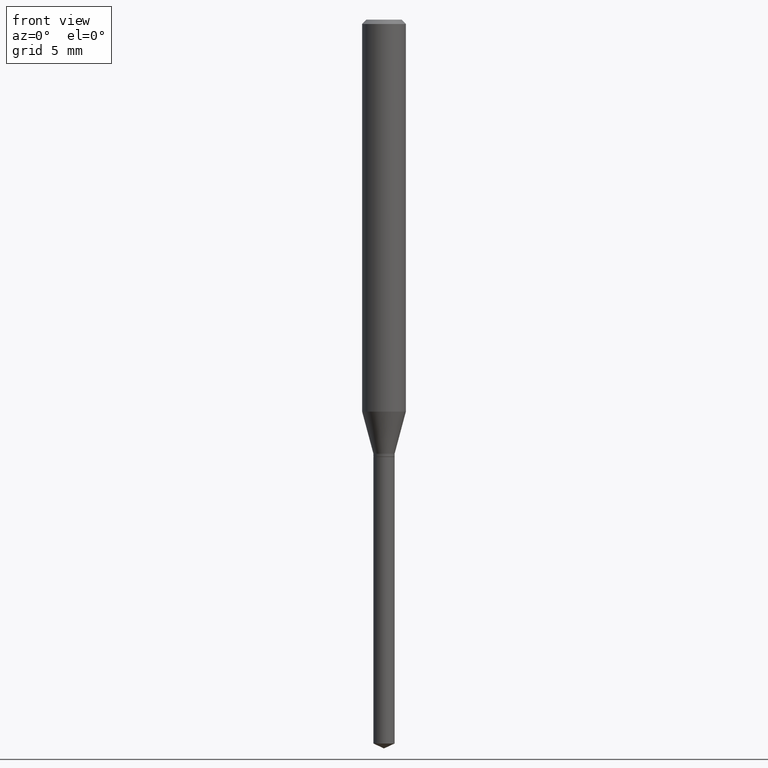
[diagram: clean part render]
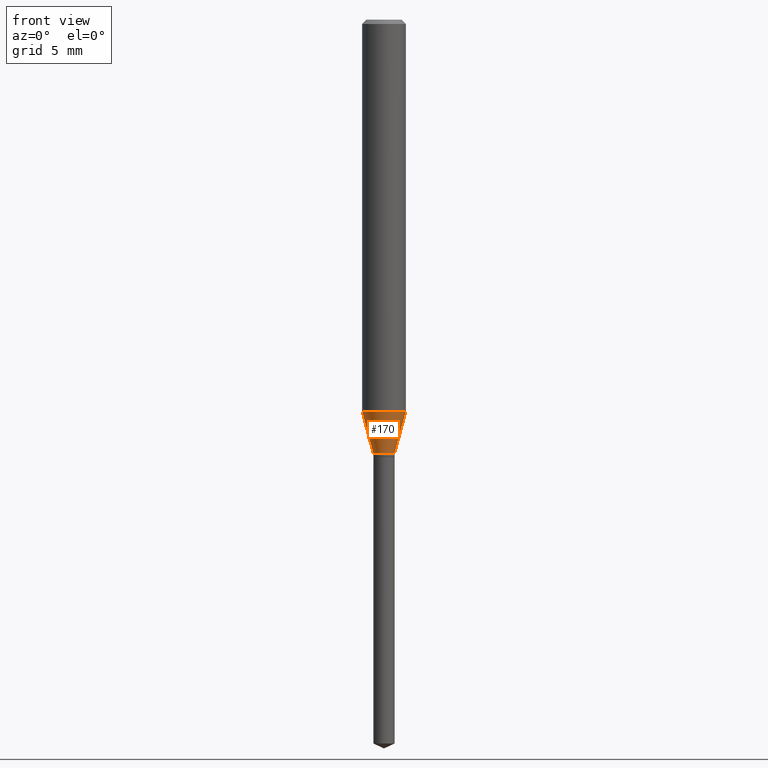
[diagram: same view with one face highlighted and labeled with its STEP entity id]
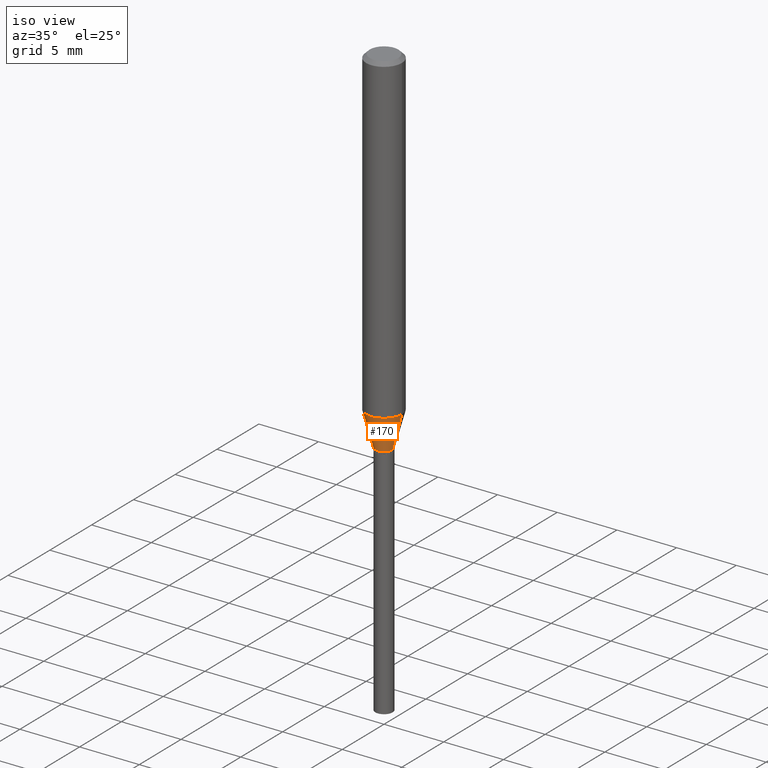
[diagram: same view with one face highlighted and labeled with its STEP entity id]
A machine part, front view. The second image highlights one B-rep face of the part: STEP entity #170.
A second angle (iso view) of the same face is appended — the face is thin or edge-on in the first view.
In plain terms, the highlighted conical surface has half-angle 15 deg.
Its self-contained STEP definition (entity closure, byte-faithful):
#63 = CARTESIAN_POINT ( 'NONE',  ( -0.02855000000000000593, -3.892647659403500739E-15, -1.173000000000000043 ) ) ;
#98 = CARTESIAN_POINT ( 'NONE',  ( 2.590173187748429054E-29, -3.698080845080651736E-15, -1.059172450369149088 ) ) ;
#120 = DIRECTION ( 'NONE',  ( 1.000000000000000000, -6.982962677686275388E-15, 0.000000000000000000 ) ) ;
#123 = VERTEX_POINT ( 'NONE', #226 ) ;
#125 = ORIENTED_EDGE ( 'NONE', *, *, #266, .T. ) ;
#126 = DIRECTION ( 'NONE',  ( 0.2588190451025214611, 1.565188264969621573E-15, 0.9659258262890682012 ) ) ;
#128 = DIRECTION ( 'NONE',  ( 1.000000000000000000, -6.982962677686264344E-15, 0.000000000000000000 ) ) ;
#129 = ORIENTED_EDGE ( 'NONE', *, *, #463, .F. ) ;
#143 = AXIS2_PLACEMENT_3D ( 'NONE', #157, #454, #237 ) ;
#155 = CARTESIAN_POINT ( 'NONE',  ( 2.868534909655165192E-29, -4.095507610463009878E-15, -1.173000000000000043 ) ) ;
#157 = CARTESIAN_POINT ( 'NONE',  ( 2.868534909655165192E-29, -4.095507610463009878E-15, -1.173000000000000043 ) ) ;
#160 = CARTESIAN_POINT ( 'NONE',  ( 0.02855000000000000593, -4.294871194910953474E-15, -1.173000000000000043 ) ) ;
#162 = AXIS2_PLACEMENT_3D ( 'NONE', #98, #465, #128 ) ;
#168 = DIRECTION ( 'NONE',  ( -0.2588190451025214611, 5.211531920934551042E-15, 0.9659258262890682012 ) ) ;
#170 = ADVANCED_FACE ( 'NONE', ( #382 ), #350, .T. ) ;
#186 = AXIS2_PLACEMENT_3D ( 'NONE', #155, #410, #120 ) ;
#197 = CIRCLE ( 'NONE', #186, 0.02855000000000000593 ) ;
#216 = VERTEX_POINT ( 'NONE', #453 ) ;
#218 = CIRCLE ( 'NONE', #162, 0.05905000000000013710 ) ;
#226 = CARTESIAN_POINT ( 'NONE',  ( -0.02855000000000000593, -3.906788158825816102E-15, -1.173000000000000043 ) ) ;
#235 = CARTESIAN_POINT ( 'NONE',  ( 0.05905000000000013710, -4.110424791198027445E-15, -1.059172450369149088 ) ) ;
#237 = DIRECTION ( 'NONE',  ( 1.000000000000000000, -6.982962677686275388E-15, 0.000000000000000000 ) ) ;
#241 = VECTOR ( 'NONE', #168, 39.37007874015747433 ) ;
#250 = ORIENTED_EDGE ( 'NONE', *, *, #405, .F. ) ;
#266 = EDGE_CURVE ( 'NONE', #123, #288, #197, .T. ) ;
#282 = VERTEX_POINT ( 'NONE', #235 ) ;
#288 = VERTEX_POINT ( 'NONE', #421 ) ;
#350 = CONICAL_SURFACE ( 'NONE', #143, 0.02855000000000000593, 0.2617993877991501295 ) ;
#367 = LINE ( 'NONE', #160, #459 ) ;
#382 = FACE_OUTER_BOUND ( 'NONE', #466, .T. ) ;
#405 = EDGE_CURVE ( 'NONE', #216, #282, #218, .T. ) ;
#410 = DIRECTION ( 'NONE',  ( -2.445468806185136597E-29, 3.491481338843145583E-15, 1.000000000000000000 ) ) ;
#421 = CARTESIAN_POINT ( 'NONE',  ( 0.02855000000000000593, -4.294871194910953474E-15, -1.173000000000000043 ) ) ;
#422 = ORIENTED_EDGE ( 'NONE', *, *, #480, .T. ) ;
#438 = LINE ( 'NONE', #63, #241 ) ;
#453 = CARTESIAN_POINT ( 'NONE',  ( -0.05905000000000013710, -3.278505359614311455E-15, -1.059172450369149088 ) ) ;
#454 = DIRECTION ( 'NONE',  ( -2.445468806185136597E-29, 3.491481338843145583E-15, 1.000000000000000000 ) ) ;
#459 = VECTOR ( 'NONE', #126, 39.37007874015747433 ) ;
#463 = EDGE_CURVE ( 'NONE', #123, #216, #438, .T. ) ;
#465 = DIRECTION ( 'NONE',  ( -2.445468806185136597E-29, 3.491481338843145583E-15, 1.000000000000000000 ) ) ;
#466 = EDGE_LOOP ( 'NONE', ( #129, #125, #422, #250 ) ) ;
#480 = EDGE_CURVE ( 'NONE', #288, #282, #367, .T. ) ;